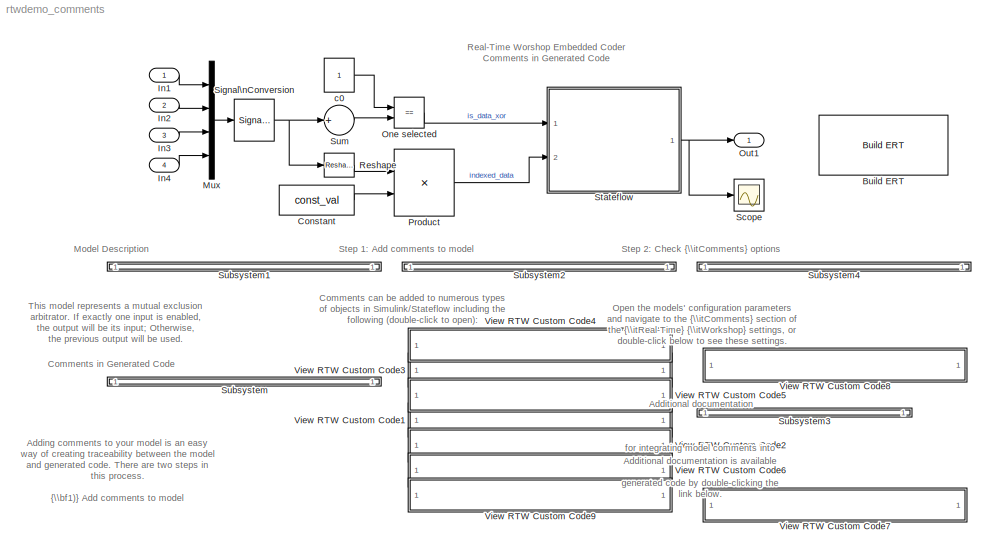
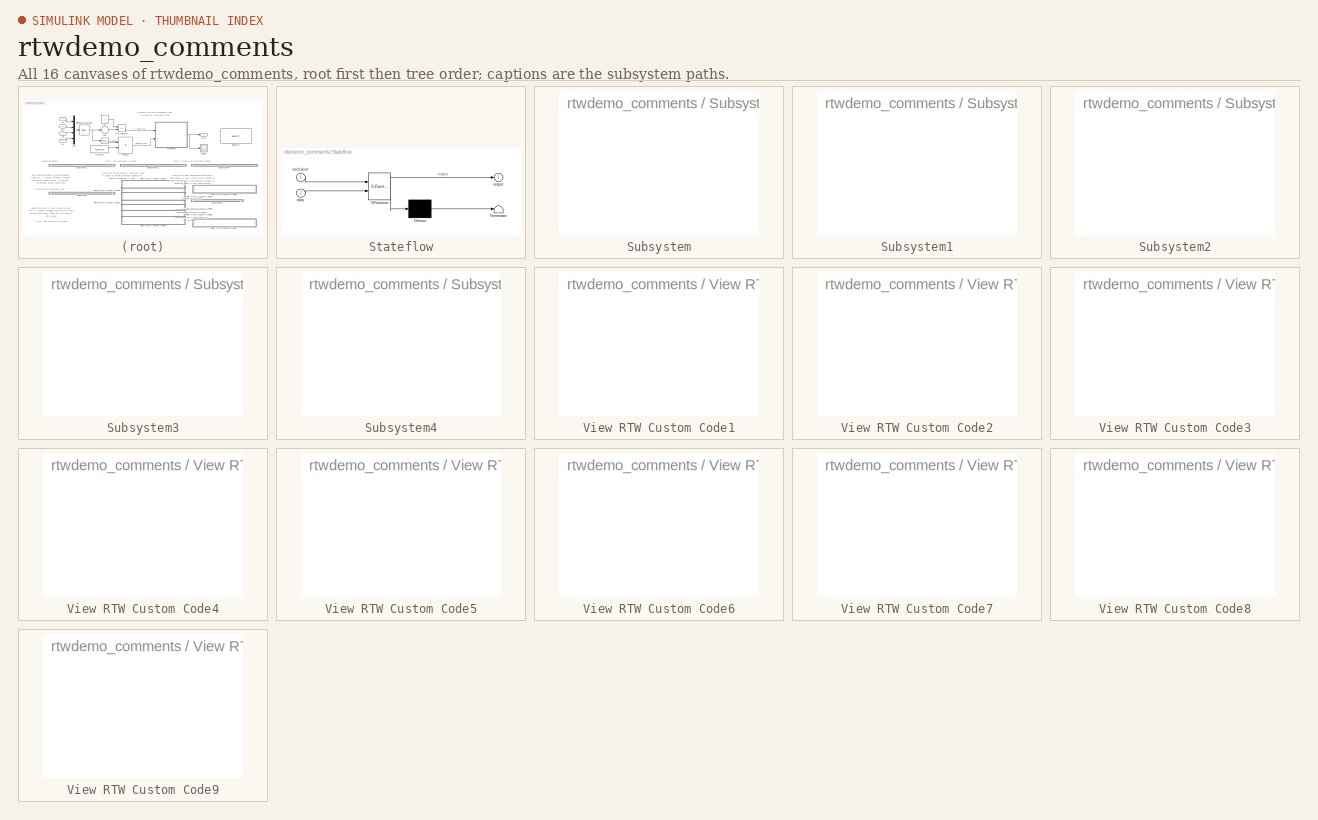
[diagram: thumbnail index - all 16 canvases of the model, root first then tree order]
MODEL rtwdemo_comments
KIND model
CONFIG PreLoadFcn = rtwdemo_comments_data;
BLOCK [Reference] Build ERT  REF=rtwdemowidgets/Build ERT
  Ports = []
  ShowPortLabels = on
  SourceBlock = rtwdemowidgets/Build ERT
  attrib_overrides = {}
BLOCK [Constant] Constant
  OutDataTypeMode = double
  Value = const_val
  VectorParams1D = off
BLOCK [Inport] In1
  DataType = double
  IconDisplay = Port number
  LatchInput = off
  Port = 1
  PortDimensions = 1
BLOCK [Inport] In2
  DataType = double
  IconDisplay = Port number
  LatchInput = off
  Port = 2
  PortDimensions = 1
BLOCK [Inport] In3
  DataType = double
  IconDisplay = Port number
  LatchInput = off
  Port = 3
  PortDimensions = 1
BLOCK [Inport] In4
  DataType = double
  IconDisplay = Port number
  LatchInput = off
  Port = 4
  PortDimensions = 1
BLOCK [Mux] Mux
  DisplayOption = bar
  Ports = [4, 1]
BLOCK [RelationalOperator] One selected 
  Description = This block determines if exactly one input is enabled.
  InputSameDT = off
  LogicOutDataTypeMode = Boolean
  Operator = ==
BLOCK [Outport] Out1
  BusOutputAsStruct = off
  IconDisplay = Port number
BLOCK [Product] Product
  Description = This block determines the output index by taking the inner product of the vector of inputs and [1 2 3 4].
  InputSameDT = off
  Multiplication = Matrix(*)
  OutDataTypeMode = double
  Ports = [2, 1]
  SaturateOnIntegerOverflow = off
BLOCK [Reference] Reshape  REF=simulink/Math\nOperations/Reshape
  OutputDimensionality = Row vector
  OutputDimensions = [1,1]
  Ports = [1, 1]
  SourceBlock = simulink/Math\nOperations/Reshape
  SourceType = Reshape
BLOCK [Scope] Scope
  DataFormat = StructureWithTime
  NumInputPorts = 1
  Ports = [1]
  YMax = 1.05
  YMin = 0.95
BLOCK [SignalConversion] Signal\nConversion
  ConversionOutput = Contiguous copy
  OverrideOpt = on
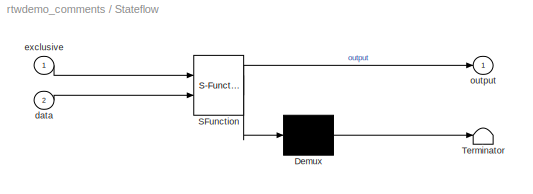
BLOCK [SubSystem] Stateflow
  Description = Stateflow block decides the index output by following logic   \n1. If one and only one input signal is enabled, the index will\nrefer to the enabled signal line.                             \n2. Otherwise, maintain the old value.
  MaskDescription = Stateflow diagram
  MaskDisplay = plot(sf('Private','sfblk','xIcon'),sf('Private','sfblk','yIcon'));text(0.5,0,sf('Private', 'sfblk', 'tIcon'),'HorizontalAl','Center','VerticalAl','Bottom');
  MaskIconFrame = off
  MaskIconOpaque = off
  MaskIconRotate = none
  MaskIconUnits = autoscale
  MaskSelfModifiable = on
  MaskType = Stateflow
  MinAlgLoopOccurrences = off
  Ports = [2, 1]
  PropExecContextAcrossSSBoundary = on
  RTWSystemCode = Auto
  TreatAsAtomicUnit = on
BLOCK [Demux] Stateflow/ Demux 
  Outputs = 1
  Ports = [1, 1]
BLOCK [S-Function] Stateflow/ SFunction 
  FunctionName = sf_sfun
  PortCounts = [2 2]
  Ports = [2, 2]
  Tag = Stateflow S-Function rtwdemo_comments 1
BLOCK [Terminator] Stateflow/ Terminator 
BLOCK [Inport] Stateflow/data
  IconDisplay = Port number
  LatchInput = off
  Port = 2
BLOCK [Inport] Stateflow/exclusive
  IconDisplay = Port number
  LatchInput = off
  Port = 1
BLOCK [Outport] Stateflow/output
  BusOutputAsStruct = off
  IconDisplay = Port number
BLOCK [SubSystem] Subsystem
  MinAlgLoopOccurrences = off
  Ports = []
  PropExecContextAcrossSSBoundary = on
  RTWSystemCode = Auto
  TreatAsAtomicUnit = off
BLOCK [SubSystem] Subsystem1
  MinAlgLoopOccurrences = off
  Ports = []
  PropExecContextAcrossSSBoundary = on
  RTWSystemCode = Auto
  TreatAsAtomicUnit = off
BLOCK [SubSystem] Subsystem2
  MinAlgLoopOccurrences = off
  Ports = []
  PropExecContextAcrossSSBoundary = on
  RTWSystemCode = Auto
  TreatAsAtomicUnit = off
BLOCK [SubSystem] Subsystem3
  MinAlgLoopOccurrences = off
  Ports = []
  PropExecContextAcrossSSBoundary = on
  RTWSystemCode = Auto
  TreatAsAtomicUnit = off
BLOCK [SubSystem] Subsystem4
  MinAlgLoopOccurrences = off
  Ports = []
  PropExecContextAcrossSSBoundary = on
  RTWSystemCode = Auto
  TreatAsAtomicUnit = off
BLOCK [Sum] Sum
  Description = This block counts the number of enabled inputs.
  Inputs = +
  OutDataTypeMode = double
  OutScaling = 2^-10
  Ports = [1, 1]
  SaturateOnIntegerOverflow = off
BLOCK [SubSystem] View RTW Custom Code1
  MaskDisplay = patch(arrowXvec, arrowYvec);\ntext(textX, textY, 'Simulink Signal Object');
  MaskIconFrame = off
  MaskIconOpaque = on
  MaskIconRotate = none
  MaskIconUnits = pixels
  MaskInitialization = pos    = get_param(gcb, 'Position');\nwidth  = pos(3) - pos(1);\nheight = pos(4) - pos(2);\n\n\n% Compute arrow coordinates\narrowW = width  / 20;\narrowH = height / 2.5;\narrowX = width  / 50;\narrowY = height / 3;\narrowXvec = [arrowX, arrowX, arrowX + arrowW];\narrowYvec = [arrowY, arrowY + arrowH, arrowY + arrowH / 2];\n\n% Compute text position\ntextXbuff = width / 30;\ntextX  = arrowX + arro...<+39ch>  <repeated x9 — deduplicated; at blocks: View RTW Custom Code1, View RTW Custom Code2, View RTW Custom Code3, View RTW Custom Code4, View RTW Custom Code5, View RTW Custom Code6, View RTW Custom Code7, View RTW Custom Code8, View RTW Custom Code9>
  MinAlgLoopOccurrences = off
  OpenFcn = DAStudio.Dialog(is_data_xor);
  Ports = []
  PropExecContextAcrossSSBoundary = on
  RTWSystemCode = Auto
  TreatAsAtomicUnit = off
BLOCK [SubSystem] View RTW Custom Code2
  MaskDisplay = patch(arrowXvec, arrowYvec);\ntext(textX, textY, 'Simulink Parameter Object');
  MaskIconFrame = off
  MaskIconOpaque = on
  MaskIconRotate = none
  MaskIconUnits = pixels
  MinAlgLoopOccurrences = off
  OpenFcn = DAStudio.Dialog(const_val);
  Ports = []
  PropExecContextAcrossSSBoundary = on
  RTWSystemCode = Auto
  TreatAsAtomicUnit = off
BLOCK [SubSystem] View RTW Custom Code3
  MaskDisplay = patch(arrowXvec, arrowYvec);\ntext(textX, textY, 'Stateflow State');
  MaskIconFrame = off
  MaskIconOpaque = on
  MaskIconRotate = none
  MaskIconUnits = pixels
  MinAlgLoopOccurrences = off
  OpenFcn = state=find(sfroot,'-isa','Stateflow.State','-and','Name','Normal');\nsf('Open',state.id);                                               \nDAStudio.Dialog(state);
  Ports = []
  PropExecContextAcrossSSBoundary = on
  RTWSystemCode = Auto
  TreatAsAtomicUnit = off
BLOCK [SubSystem] View RTW Custom Code4
  MaskDisplay = patch(arrowXvec, arrowYvec);\ntext(textX, textY, 'Simulink Block');
  MaskIconFrame = off
  MaskIconOpaque = on
  MaskIconRotate = none
  MaskIconUnits = pixels
  MinAlgLoopOccurrences = off
  OpenFcn = block=[bdroot, '/Product'];    \nhilite_system(block);          \nopen_system(block, 'property');
  Ports = []
  PropExecContextAcrossSSBoundary = on
  RTWSystemCode = Auto
  TreatAsAtomicUnit = off
BLOCK [SubSystem] View RTW Custom Code5
  MaskDisplay = patch(arrowXvec, arrowYvec);\ntext(textX, textY, 'Stateflow Transition');
  MaskIconFrame = off
  MaskIconOpaque = on
  MaskIconRotate = none
  MaskIconUnits = pixels
  MinAlgLoopOccurrences = off
  OpenFcn = trans=find(sfroot,'-isa','Stateflow.Transition','-and','LabelString','// After initialize');\nsf('Open',trans.id);                                                                        \nDAStudio.Dialog(trans);
  Ports = []
  PropExecContextAcrossSSBoundary = on
  RTWSystemCode = Auto
  TreatAsAtomicUnit = off
BLOCK [SubSystem] View RTW Custom Code6
  MaskDisplay = patch(arrowXvec, arrowYvec);\ntext(textX, textY, 'MPT Signal Object');
  MaskIconFrame = off
  MaskIconOpaque = on
  MaskIconRotate = none
  MaskIconUnits = pixels
  MinAlgLoopOccurrences = off
  OpenFcn = DAStudio.Dialog(indexed_data);
  Ports = []
  PropExecContextAcrossSSBoundary = on
  RTWSystemCode = Auto
  TreatAsAtomicUnit = off
BLOCK [SubSystem] View RTW Custom Code7
  MaskDisplay = patch(arrowXvec, arrowYvec);\ntext(textX, textY, 'Comments Documentation');
  MaskIconFrame = off
  MaskIconOpaque = on
  MaskIconRotate = none
  MaskIconUnits = pixels
  MinAlgLoopOccurrences = off
  OpenFcn = helpview([docroot '/mapfiles/ecoder_ug.map'], 'ecoder_comments_pane')
  Ports = []
  PropExecContextAcrossSSBoundary = on
  RTWSystemCode = Auto
  TreatAsAtomicUnit = off
BLOCK [SubSystem] View RTW Custom Code8
  MaskDisplay = patch(arrowXvec, arrowYvec);\ntext(textX, textY, 'Open Comments Settings');
  MaskIconFrame = off
  MaskIconOpaque = on
  MaskIconRotate = none
  MaskIconUnits = pixels
  MinAlgLoopOccurrences = off
  OpenFcn = model = bdroot;                             \nslCfgPrmDlg(model,'Open');                  \nslCfgPrmDlg(bdroot,'TurnToPage','Comments');
  Ports = []
  PropExecContextAcrossSSBoundary = on
  RTWSystemCode = Auto
  TreatAsAtomicUnit = off
BLOCK [SubSystem] View RTW Custom Code9
  MaskDisplay = patch(arrowXvec, arrowYvec);\ntext(textX, textY, 'MPT Callback Function');
  MaskIconFrame = off
  MaskIconOpaque = on
  MaskIconRotate = none
  MaskIconUnits = pixels
  MinAlgLoopOccurrences = off
  OpenFcn = edit rtwdemo_comments_mptfun.m;
  Ports = []
  PropExecContextAcrossSSBoundary = on
  RTWSystemCode = Auto
  TreatAsAtomicUnit = off
BLOCK [Constant] c0
ANNOTATION (root): Adding comments to your model is an easy\nway of creating traceability between the model\nand generated code. There are two steps in\nthis process.\n\n {\\bf1)} Add comments to model\n {\\bf2)} Check configuration parameter options
ANNOTATION (root): Additional documentation
ANNOTATION (root): Additional documentation is available\nfor integrating model comments into\ngenerated code by double-clicking the\nlink below.
ANNOTATION (root): Comments can be added to numerous types\nof objects in Simulink/Stateflow including the\nfollowing (double-click to open):
ANNOTATION (root): Comments in Generated Code
ANNOTATION (root): Model Description
ANNOTATION (root): Open the models' configuration parameters\nand navigate to the {\\itComments} section of\nthe {\\itReal-Time} {\\itWorkshop} settings, or\ndouble-click below to see these settings.
ANNOTATION (root): Real-Time Worshop Embedded Coder\nComments in Generated Code
ANNOTATION (root): Step 1: Add comments to model
ANNOTATION (root): Step 2: Check {\\itComments} options
ANNOTATION (root): This model represents a mutual exclusion\narbitrator. If exactly one input is enabled,\nthe output will be its input; Otherwise,\nthe previous output will be used.
LINE Constant:1 -> Product:2
LINE In1:1 -> Mux:1
LINE In2:1 -> Mux:2
LINE In3:1 -> Mux:3
LINE In4:1 -> Mux:4
LINE Mux:1 -> Signal\nConversion:1
LINE One selected :1 -> Stateflow:1
LINE Product:1 -> Stateflow:2
LINE Reshape:1 -> Product:1
NET Signal\nConversion:1 -> Reshape:1, Sum:1
LINE Stateflow/ Demux :1 -> Stateflow/ Terminator :1
LINE Stateflow/ SFunction :1 -> Stateflow/ Demux :1
LINE Stateflow/ SFunction :2 -> Stateflow/output:1
LINE Stateflow/data:1 -> Stateflow/ SFunction :2
LINE Stateflow/exclusive:1 -> Stateflow/ SFunction :1
NET Stateflow:1 -> Out1:1, Scope:1
LINE Sum:1 -> One selected :2
LINE c0:1 -> One selected :1
note: NET lines group one-source signal fan-out (src -> all destinations, sorted); 1:1 wires keep LINE
CHART Stateflow states=2 transitions=8
  STATE_LABEL 'Normal'
  STATE_LABEL 'First\\nentry: output=1;'
